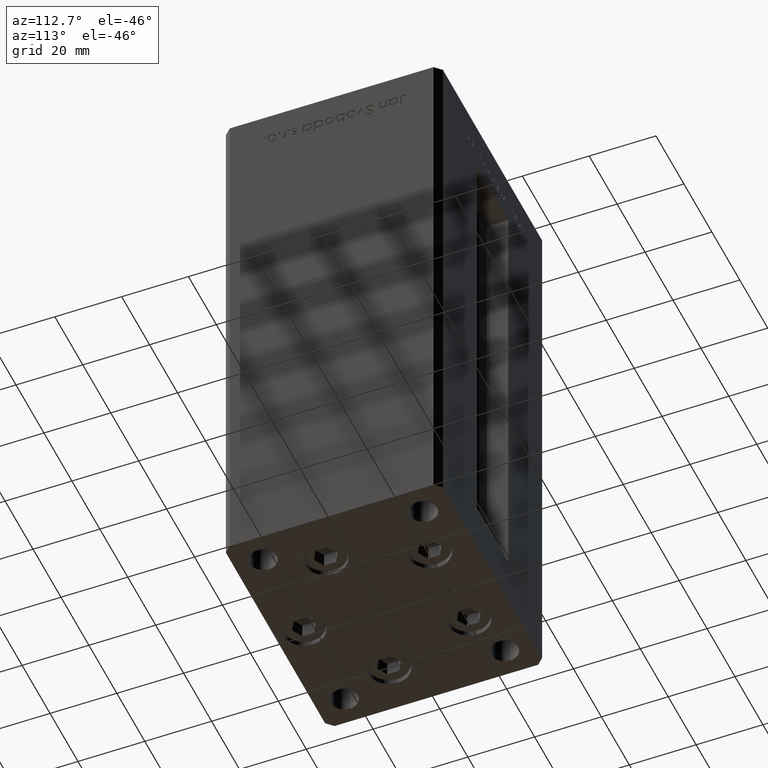
[diagram: clean part render]
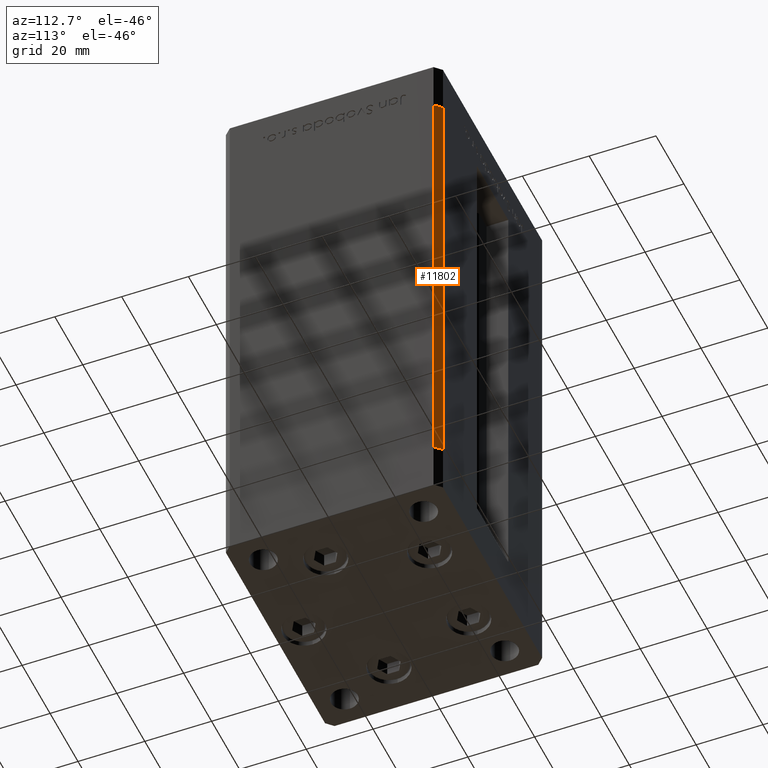
[diagram: same view with one face highlighted and labeled with its STEP entity id]
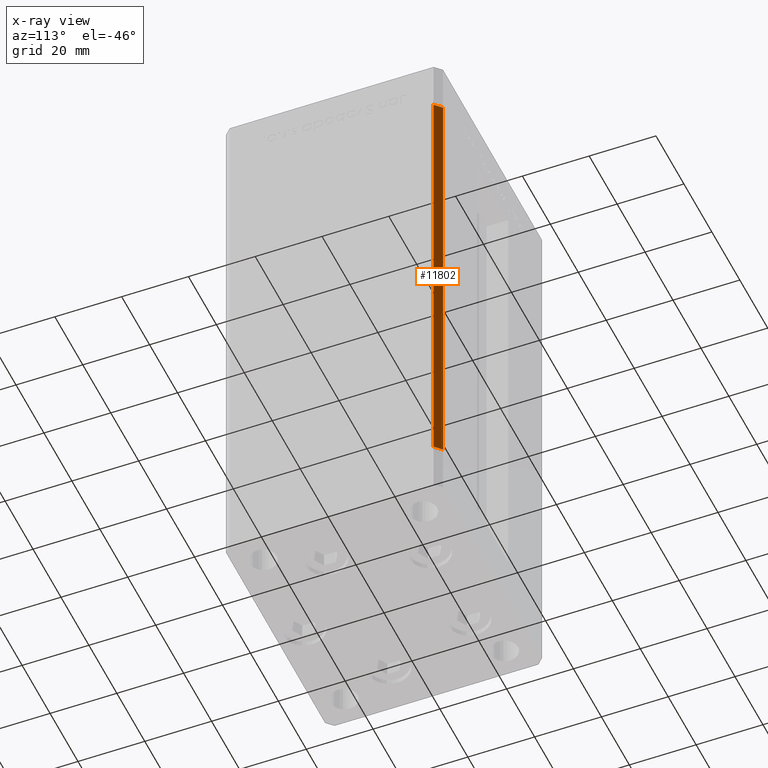
[diagram: x-ray of the same camera — body ghosted, the highlighted face saturated]
A machine part, auxiliary view. The second image highlights one B-rep face of the part: STEP entity #11802.
The next image is the same camera in x-ray: the body ghosted, the highlighted face saturated — about 0% of this face is hidden behind the body in this view.
In plain terms, the highlighted planar face has unit normal (0.7071, 0.7071, 0).
Its self-contained STEP definition (entity closure, byte-faithful):
#3202 = EDGE_LOOP ( 'NONE', ( #16612, #44298, #34092, #50575 ) ) ;
#3397 = DIRECTION ( 'NONE',  ( 0.7071067811865500152, -0.7071067811865451302, 0.000000000000000000 ) ) ;
#7250 = EDGE_CURVE ( 'NONE', #35392, #25274, #29332, .T. ) ;
#7718 = VECTOR ( 'NONE', #3397, 1000.000000000000114 ) ;
#9259 = DIRECTION ( 'NONE',  ( -0.000000000000000000, -0.000000000000000000, -1.000000000000000000 ) ) ;
#9288 = VECTOR ( 'NONE', #9259, 1000.000000000000000 ) ;
#11802 = ADVANCED_FACE ( 'NONE', ( #49938 ), #41256, .T. ) ;
#12644 = LINE ( 'NONE', #20826, #47775 ) ;
#13822 = DIRECTION ( 'NONE',  ( -0.7071067811865500152, 0.7071067811865451302, 0.000000000000000000 ) ) ;
#14578 = VERTEX_POINT ( 'NONE', #19523 ) ;
#15971 = DIRECTION ( 'NONE',  ( -0.000000000000000000, -0.000000000000000000, -1.000000000000000000 ) ) ;
#16612 = ORIENTED_EDGE ( 'NONE', *, *, #32092, .F. ) ;
#19523 = CARTESIAN_POINT ( 'NONE',  ( 37.50000000000000711, 30.50000000000000000, 136.0000000000000000 ) ) ;
#20826 = CARTESIAN_POINT ( 'NONE',  ( 35.50000000000000000, 32.49999999999999289, 0.000000000000000000 ) ) ;
#21224 = CARTESIAN_POINT ( 'NONE',  ( 35.50000000000000000, 32.49999999999999289, 136.0000000000000000 ) ) ;
#22087 = AXIS2_PLACEMENT_3D ( 'NONE', #21224, #37318, #13822 ) ;
#23373 = CARTESIAN_POINT ( 'NONE',  ( 37.50000000000000711, 30.50000000000000000, 136.0000000000000000 ) ) ;
#25274 = VERTEX_POINT ( 'NONE', #47246 ) ;
#29332 = LINE ( 'NONE', #45378, #9288 ) ;
#31330 = CARTESIAN_POINT ( 'NONE',  ( 37.50000000000000711, 30.50000000000000000, 0.000000000000000000 ) ) ;
#31916 = DIRECTION ( 'NONE',  ( 0.7071067811865500152, -0.7071067811865451302, 0.000000000000000000 ) ) ;
#32092 = EDGE_CURVE ( 'NONE', #25274, #35109, #12644, .T. ) ;
#32164 = CARTESIAN_POINT ( 'NONE',  ( 35.50000000000000000, 32.49999999999999289, 136.0000000000000000 ) ) ;
#34092 = ORIENTED_EDGE ( 'NONE', *, *, #42464, .T. ) ;
#35109 = VERTEX_POINT ( 'NONE', #31330 ) ;
#35392 = VERTEX_POINT ( 'NONE', #48534 ) ;
#35766 = LINE ( 'NONE', #23373, #46372 ) ;
#37318 = DIRECTION ( 'NONE',  ( 0.7071067811865451302, 0.7071067811865500152, -0.000000000000000000 ) ) ;
#39625 = EDGE_CURVE ( 'NONE', #14578, #35109, #35766, .T. ) ;
#40604 = LINE ( 'NONE', #32164, #7718 ) ;
#41256 = PLANE ( 'NONE',  #22087 ) ;
#42464 = EDGE_CURVE ( 'NONE', #35392, #14578, #40604, .T. ) ;
#44298 = ORIENTED_EDGE ( 'NONE', *, *, #7250, .F. ) ;
#45378 = CARTESIAN_POINT ( 'NONE',  ( 35.50000000000000000, 32.49999999999999289, 136.0000000000000000 ) ) ;
#46372 = VECTOR ( 'NONE', #15971, 1000.000000000000000 ) ;
#47246 = CARTESIAN_POINT ( 'NONE',  ( 35.50000000000000000, 32.49999999999999289, 0.000000000000000000 ) ) ;
#47775 = VECTOR ( 'NONE', #31916, 1000.000000000000114 ) ;
#48534 = CARTESIAN_POINT ( 'NONE',  ( 35.50000000000000000, 32.49999999999999289, 136.0000000000000000 ) ) ;
#49938 = FACE_OUTER_BOUND ( 'NONE', #3202, .T. ) ;
#50575 = ORIENTED_EDGE ( 'NONE', *, *, #39625, .T. ) ;